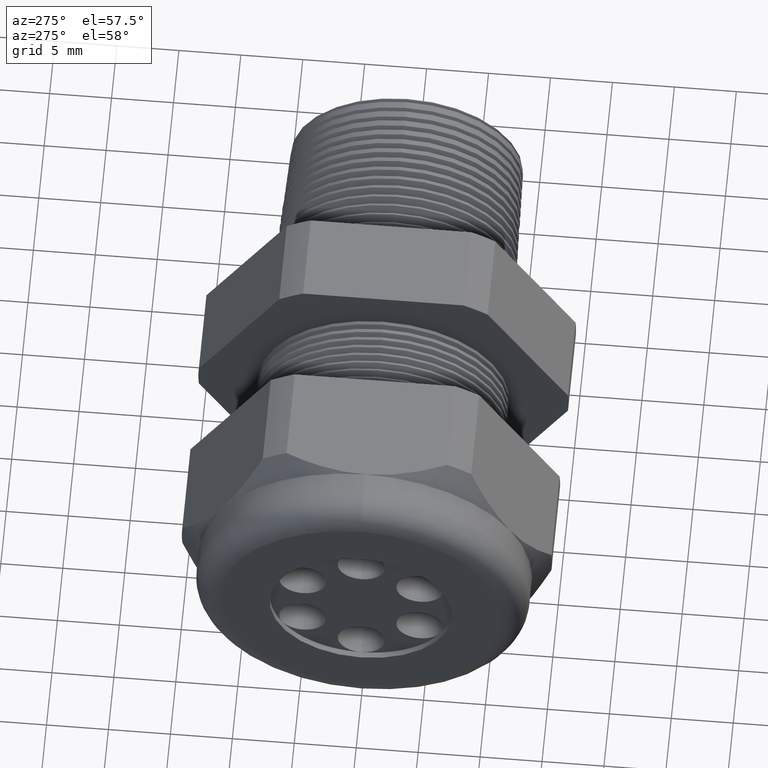
[diagram: clean part render]
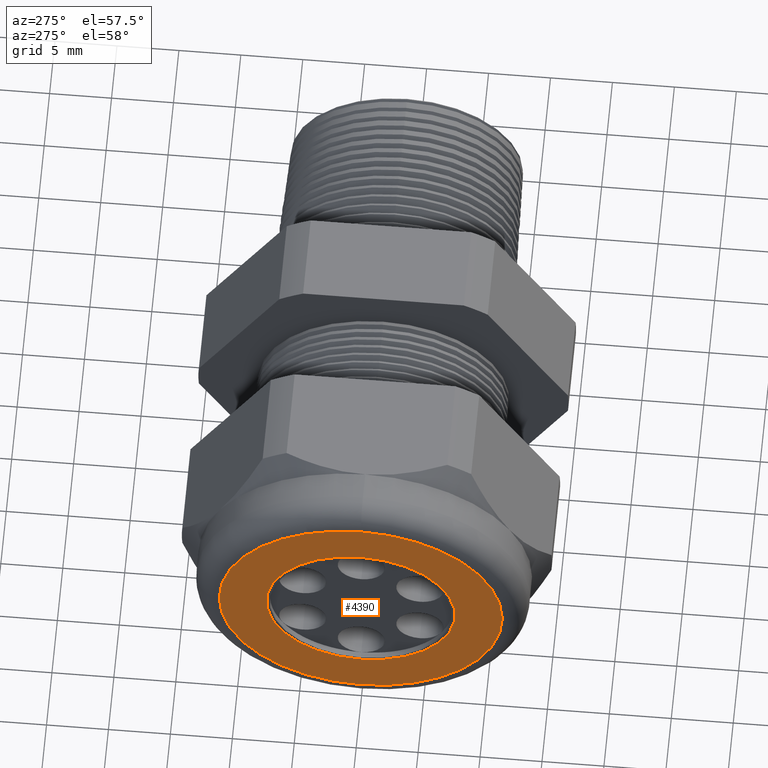
[diagram: same view with one face highlighted and labeled with its STEP entity id]
A machine part, auxiliary view. The second image highlights one B-rep face of the part: STEP entity #4390.
In plain terms, the highlighted planar face has unit normal (-1, 0, 0).
Its self-contained STEP definition (entity closure, byte-faithful):
#3172 = CARTESIAN_POINT ( 'NONE',  ( -1.409999999999999900, 0.5299999999999999200, 0.0000000000000000000 ) ) ;
#3173 = AXIS2_PLACEMENT_3D ( 'NONE', #3172, #3235, #3234 ) ;
#3174 = PLANE ( 'NONE',  #3173 ) ;
#3175 = FACE_BOUND ( 'NONE', #4379, .T. ) ;
#3176 = FACE_OUTER_BOUND ( 'NONE', #4383, .T. ) ;
#3187 = DIRECTION ( 'NONE',  ( 0.0000000000000000000, 0.0000000000000000000, 1.000000000000000000 ) ) ;
#3188 = DIRECTION ( 'NONE',  ( -1.000000000000000000, 0.0000000000000000000, 0.0000000000000000000 ) ) ;
#3189 = CARTESIAN_POINT ( 'NONE',  ( -1.409999999999999900, 0.0000000000000000000, 0.0000000000000000000 ) ) ;
#3190 = AXIS2_PLACEMENT_3D ( 'NONE', #3189, #3188, #3187 ) ;
#3191 = CIRCLE ( 'NONE', #3190, 0.4499999999999999600 ) ;
#3229 = DIRECTION ( 'NONE',  ( 0.0000000000000000000, 0.0000000000000000000, -1.000000000000000000 ) ) ;
#3230 = DIRECTION ( 'NONE',  ( 1.000000000000000000, 0.0000000000000000000, 0.0000000000000000000 ) ) ;
#3231 = CARTESIAN_POINT ( 'NONE',  ( -1.409999999999999900, 0.0000000000000000000, 0.0000000000000000000 ) ) ;
#3232 = AXIS2_PLACEMENT_3D ( 'NONE', #3231, #3230, #3229 ) ;
#3233 = CIRCLE ( 'NONE', #3232, 0.2999999999999999900 ) ;
#3234 = DIRECTION ( 'NONE',  ( 0.0000000000000000000, 0.0000000000000000000, 1.000000000000000000 ) ) ;
#3235 = DIRECTION ( 'NONE',  ( -1.000000000000000000, 0.0000000000000000000, 0.0000000000000000000 ) ) ;
#3609 = CARTESIAN_POINT ( 'NONE',  ( -1.409999999999999900, 6.000769315822029800E-017, -0.4499999999999999600 ) ) ;
#3705 = DIRECTION ( 'NONE',  ( 0.0000000000000000000, 0.0000000000000000000, 1.000000000000000000 ) ) ;
#3707 = DIRECTION ( 'NONE',  ( -1.000000000000000000, 0.0000000000000000000, 0.0000000000000000000 ) ) ;
#3708 = CARTESIAN_POINT ( 'NONE',  ( -1.409999999999999900, 0.0000000000000000000, 0.0000000000000000000 ) ) ;
#3709 = AXIS2_PLACEMENT_3D ( 'NONE', #3708, #3707, #3705 ) ;
#3710 = CIRCLE ( 'NONE', #3709, 0.4499999999999999600 ) ;
#3712 = CARTESIAN_POINT ( 'NONE',  ( -1.409999999999999900, 0.0000000000000000000, 0.4499999999999999600 ) ) ;
#4377 = ORIENTED_EDGE ( 'NONE', *, *, #4392, .T. ) ;
#4378 = ORIENTED_EDGE ( 'NONE', *, *, #4733, .T. ) ;
#4379 = EDGE_LOOP ( 'NONE', ( #4377, #4378 ) ) ;
#4380 = EDGE_CURVE ( 'NONE', #4633, #4693, #3191, .T. ) ;
#4381 = ORIENTED_EDGE ( 'NONE', *, *, #4380, .T. ) ;
#4382 = ORIENTED_EDGE ( 'NONE', *, *, #4694, .T. ) ;
#4383 = EDGE_LOOP ( 'NONE', ( #4382, #4381 ) ) ;
#4390 = ADVANCED_FACE ( 'NONE', ( #3176, #3175 ), #3174, .T. ) ;
#4392 = EDGE_CURVE ( 'NONE', #4738, #4729, #3233, .T. ) ;
#4633 = VERTEX_POINT ( 'NONE', #3609 ) ;
#4693 = VERTEX_POINT ( 'NONE', #3712 ) ;
#4694 = EDGE_CURVE ( 'NONE', #4693, #4633, #3710, .T. ) ;
#4729 = VERTEX_POINT ( 'NONE', #5063 ) ;
#4733 = EDGE_CURVE ( 'NONE', #4729, #4738, #5057, .T. ) ;
#4738 = VERTEX_POINT ( 'NONE', #5047 ) ;
#5047 = CARTESIAN_POINT ( 'NONE',  ( -1.409999999999999900, 0.0000000000000000000, -0.2999999999999999900 ) ) ;
#5053 = DIRECTION ( 'NONE',  ( 0.0000000000000000000, 0.0000000000000000000, -1.000000000000000000 ) ) ;
#5054 = DIRECTION ( 'NONE',  ( 1.000000000000000000, 0.0000000000000000000, 0.0000000000000000000 ) ) ;
#5055 = CARTESIAN_POINT ( 'NONE',  ( -1.409999999999999900, 0.0000000000000000000, 0.0000000000000000000 ) ) ;
#5056 = AXIS2_PLACEMENT_3D ( 'NONE', #5055, #5054, #5053 ) ;
#5057 = CIRCLE ( 'NONE', #5056, 0.2999999999999999900 ) ;
#5063 = CARTESIAN_POINT ( 'NONE',  ( -1.409999999999999900, 3.673940397442058900E-017, 0.2999999999999999900 ) ) ;